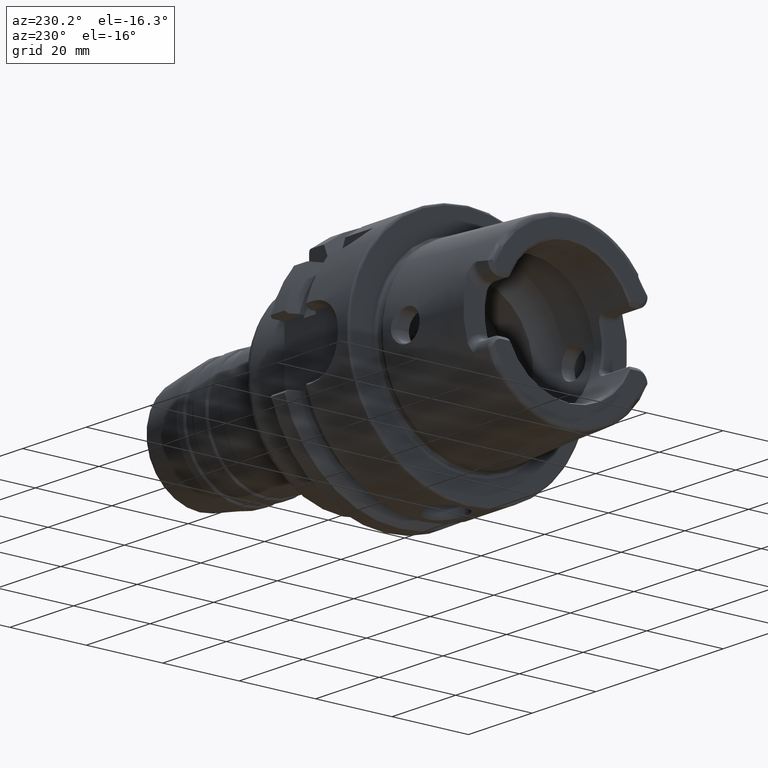
[diagram: clean part render]
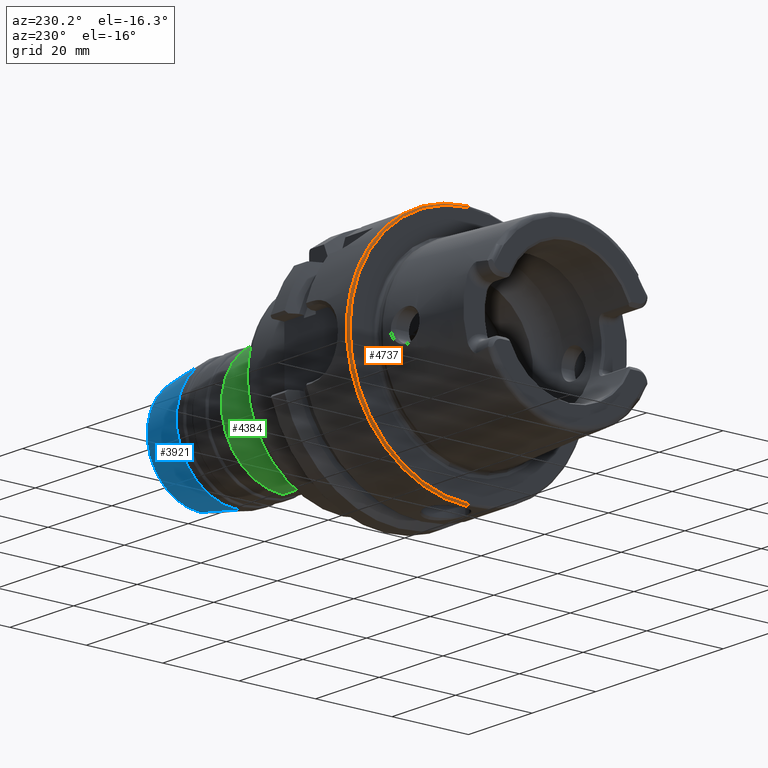
[diagram: same view with three faces highlighted in distinct colors, each labeled with its STEP entity id]
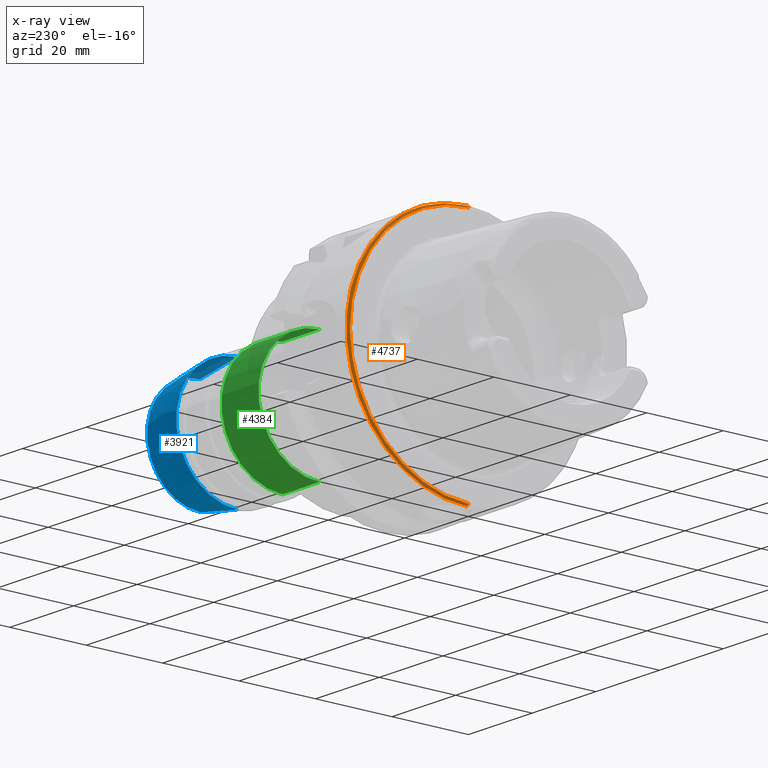
[diagram: x-ray of the same camera — body ghosted, the three highlighted faces saturated]
A machine part, auxiliary view with three faces highlighted in distinct colors.
The next image is the same camera in x-ray (body ghosted, the three faces saturated) — at least one of them is partly hidden behind the body in this view.
Their STEP definitions:

[orange] entity #4737 — the highlighted toroidal blend (fillet) surface has major radius 31 mm and minor (blend) radius 0.5 mm.
#1167=CARTESIAN_POINT('',(5.E-1,0.E0,0.E0));
#1168=DIRECTION('',(-1.E0,0.E0,0.E0));
#1169=DIRECTION('',(0.E0,0.E0,1.E0));
#1170=AXIS2_PLACEMENT_3D('',#1167,#1168,#1169);
#1260=CARTESIAN_POINT('',(5.E-1,0.E0,3.1E1));
#1261=DIRECTION('',(0.E0,1.E0,0.E0));
#1262=DIRECTION('',(-1.E0,0.E0,0.E0));
#1263=AXIS2_PLACEMENT_3D('',#1260,#1261,#1262);
#1275=CARTESIAN_POINT('',(0.E0,0.E0,0.E0));
#1276=DIRECTION('',(-1.E0,0.E0,0.E0));
#1277=DIRECTION('',(0.E0,0.E0,1.E0));
#1278=AXIS2_PLACEMENT_3D('',#1275,#1276,#1277);
#2115=CARTESIAN_POINT('',(5.E-1,1.421085471520E-14,-3.1E1));
#2116=DIRECTION('',(0.E0,-1.E0,0.E0));
#2117=DIRECTION('',(-1.E0,0.E0,1.421085471520E-14));
#2118=AXIS2_PLACEMENT_3D('',#2115,#2116,#2117);
#3126=CARTESIAN_POINT('',(0.E0,0.E0,3.1E1));
#3127=CARTESIAN_POINT('',(0.E0,1.138921523207E-14,-3.1E1));
#3128=VERTEX_POINT('',#3126);
#3129=VERTEX_POINT('',#3127);
#3130=CARTESIAN_POINT('',(5.E-1,0.E0,3.15E1));
#3131=CARTESIAN_POINT('',(5.E-1,0.E0,-3.15E1));
#3132=VERTEX_POINT('',#3130);
#3133=VERTEX_POINT('',#3131);
#4723=CARTESIAN_POINT('',(5.E-1,0.E0,0.E0));
#4724=DIRECTION('',(1.E0,0.E0,0.E0));
#4725=DIRECTION('',(0.E0,-7.560977264581E-3,9.999714154029E-1));
#4726=AXIS2_PLACEMENT_3D('',#4723,#4724,#4725);
#4727=TOROIDAL_SURFACE('',#4726,3.1E1,5.E-1);
#4729=ORIENTED_EDGE('',*,*,#4728,.T.);
#4731=ORIENTED_EDGE('',*,*,#4730,.T.);
#4732=ORIENTED_EDGE('',*,*,#4696,.F.);
#4734=ORIENTED_EDGE('',*,*,#4733,.F.);
#4735=EDGE_LOOP('',(#4729,#4731,#4732,#4734));
#4736=FACE_OUTER_BOUND('',#4735,.F.);
#4737=ADVANCED_FACE('',(#4736),#4727,.T.);
#1171=CIRCLE('',#1170,3.15E1);
#1264=CIRCLE('',#1263,5.E-1);
#1279=CIRCLE('',#1278,3.1E1);
#2119=CIRCLE('',#2118,5.E-1);
#4696=EDGE_CURVE('',#3132,#3133,#1171,.T.);
#4728=EDGE_CURVE('',#3128,#3129,#1279,.T.);
#4730=EDGE_CURVE('',#3129,#3133,#2119,.T.);
#4733=EDGE_CURVE('',#3128,#3132,#1264,.T.);

[blue] entity #3921 — the highlighted conical surface has half-angle 10 deg.
#547=DIRECTION('',(-9.848077530122E-1,0.E0,-1.736481776669E-1));
#548=VECTOR('',#547,1.183019543174E1);
#549=CARTESIAN_POINT('',(8.417364817767E1,0.E0,-1.394570812183E1));
#550=LINE('',#549,#548);
#551=DIRECTION('',(-9.848077530122E-1,0.E0,1.736481776669E-1));
#552=VECTOR('',#551,1.183019543174E1);
#553=CARTESIAN_POINT('',(8.417364817767E1,0.E0,1.394570812183E1));
#554=LINE('',#553,#552);
#560=CARTESIAN_POINT('',(8.417364817767E1,0.E0,0.E0));
#561=DIRECTION('',(1.E0,0.E0,0.E0));
#562=DIRECTION('',(0.E0,0.E0,-1.E0));
#563=AXIS2_PLACEMENT_3D('',#560,#561,#562);
#565=CARTESIAN_POINT('',(7.252317999684E1,0.E0,0.E0));
#566=DIRECTION('',(1.E0,0.E0,0.E0));
#567=DIRECTION('',(0.E0,0.E0,-1.E0));
#568=AXIS2_PLACEMENT_3D('',#565,#566,#567);
#3173=CARTESIAN_POINT('',(8.417364817767E1,0.E0,-1.394570812183E1));
#3175=VERTEX_POINT('',#3173);
#3176=CARTESIAN_POINT('',(7.252317999684E1,0.E0,-1.6E1));
#3177=VERTEX_POINT('',#3176);
#3233=CARTESIAN_POINT('',(8.417364817767E1,0.E0,1.394570812183E1));
#3235=VERTEX_POINT('',#3233);
#3236=CARTESIAN_POINT('',(7.252317999684E1,0.E0,1.6E1));
#3237=VERTEX_POINT('',#3236);
#3909=CARTESIAN_POINT('',(7.834841408725E1,0.E0,0.E0));
#3910=DIRECTION('',(-1.E0,0.E0,0.E0));
#3911=DIRECTION('',(0.E0,0.E0,-1.E0));
#3912=AXIS2_PLACEMENT_3D('',#3909,#3910,#3911);
#3913=CONICAL_SURFACE('',#3912,1.497285406092E1,1.E1);
#3914=ORIENTED_EDGE('',*,*,#3899,.F.);
#3915=ORIENTED_EDGE('',*,*,#3876,.T.);
#3916=ORIENTED_EDGE('',*,*,#3903,.T.);
#3918=ORIENTED_EDGE('',*,*,#3917,.F.);
#3919=EDGE_LOOP('',(#3914,#3915,#3916,#3918));
#3920=FACE_OUTER_BOUND('',#3919,.F.);
#3921=ADVANCED_FACE('',(#3920),#3913,.T.);
#564=CIRCLE('',#563,1.394570812183E1);
#569=CIRCLE('',#568,1.6E1);
#3876=EDGE_CURVE('',#3175,#3235,#564,.T.);
#3899=EDGE_CURVE('',#3175,#3177,#550,.T.);
#3903=EDGE_CURVE('',#3235,#3237,#554,.T.);
#3917=EDGE_CURVE('',#3177,#3237,#569,.T.);

[green] entity #4384 — the highlighted cylindrical surface (partial cylindrical patch) has radius 16 mm, axis along (1, 0, 0).
#869=CARTESIAN_POINT('',(5.836491470389E1,0.E0,0.E0));
#870=DIRECTION('',(1.E0,0.E0,0.E0));
#871=DIRECTION('',(0.E0,0.E0,-1.E0));
#872=AXIS2_PLACEMENT_3D('',#869,#870,#871);
#874=DIRECTION('',(-1.E0,0.E0,0.E0));
#875=VECTOR('',#874,1.163286389632E1);
#876=CARTESIAN_POINT('',(5.836491470389E1,0.E0,-1.6E1));
#877=LINE('',#876,#875);
#878=DIRECTION('',(-1.E0,0.E0,0.E0));
#879=VECTOR('',#878,1.163286389632E1);
#880=CARTESIAN_POINT('',(5.836491470389E1,0.E0,1.6E1));
#881=LINE('',#880,#879);
#902=CARTESIAN_POINT('',(4.673205080757E1,0.E0,0.E0));
#903=DIRECTION('',(1.E0,0.E0,0.E0));
#904=DIRECTION('',(0.E0,0.E0,-1.E0));
#905=AXIS2_PLACEMENT_3D('',#902,#903,#904);
#3208=CARTESIAN_POINT('',(5.836491470389E1,0.E0,-1.6E1));
#3209=VERTEX_POINT('',#3208);
#3210=CARTESIAN_POINT('',(4.673205080757E1,0.E0,-1.6E1));
#3211=VERTEX_POINT('',#3210);
#3268=CARTESIAN_POINT('',(5.836491470389E1,0.E0,1.6E1));
#3269=VERTEX_POINT('',#3268);
#3270=CARTESIAN_POINT('',(4.673205080757E1,0.E0,1.6E1));
#3271=VERTEX_POINT('',#3270);
#4370=CARTESIAN_POINT('',(2.305E1,0.E0,0.E0));
#4371=DIRECTION('',(1.E0,0.E0,0.E0));
#4372=DIRECTION('',(0.E0,0.E0,1.E0));
#4373=AXIS2_PLACEMENT_3D('',#4370,#4371,#4372);
#4374=CYLINDRICAL_SURFACE('',#4373,1.6E1);
#4376=ORIENTED_EDGE('',*,*,#4375,.F.);
#4377=ORIENTED_EDGE('',*,*,#4365,.T.);
#4379=ORIENTED_EDGE('',*,*,#4378,.T.);
#4381=ORIENTED_EDGE('',*,*,#4380,.F.);
#4382=EDGE_LOOP('',(#4376,#4377,#4379,#4381));
#4383=FACE_OUTER_BOUND('',#4382,.F.);
#4384=ADVANCED_FACE('',(#4383),#4374,.T.);
#873=CIRCLE('',#872,1.6E1);
#906=CIRCLE('',#905,1.6E1);
#4365=EDGE_CURVE('',#3209,#3269,#873,.T.);
#4375=EDGE_CURVE('',#3209,#3211,#877,.T.);
#4378=EDGE_CURVE('',#3269,#3271,#881,.T.);
#4380=EDGE_CURVE('',#3211,#3271,#906,.T.);